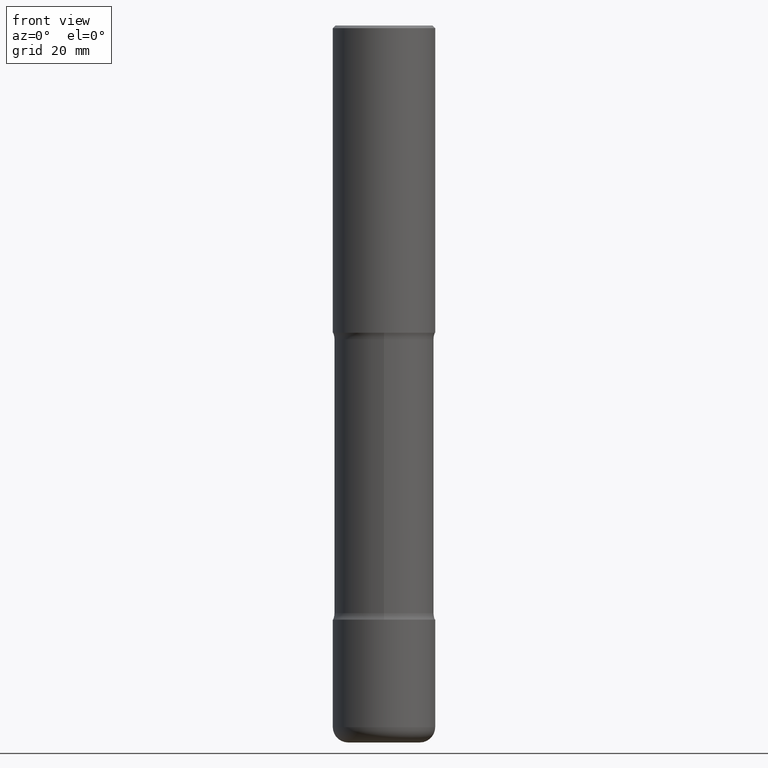
[diagram: clean part render]
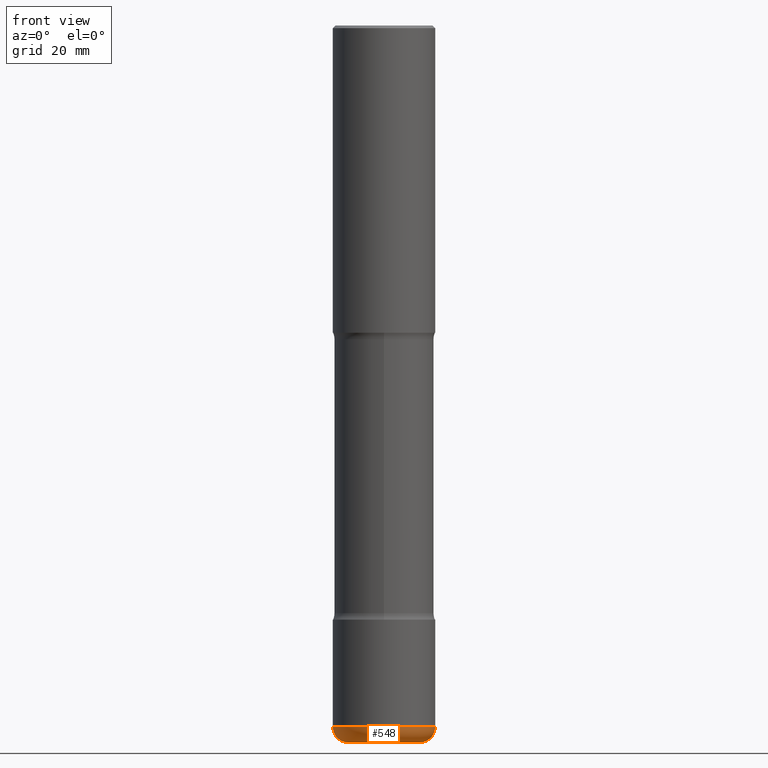
[diagram: same view with one face highlighted and labeled with its STEP entity id]
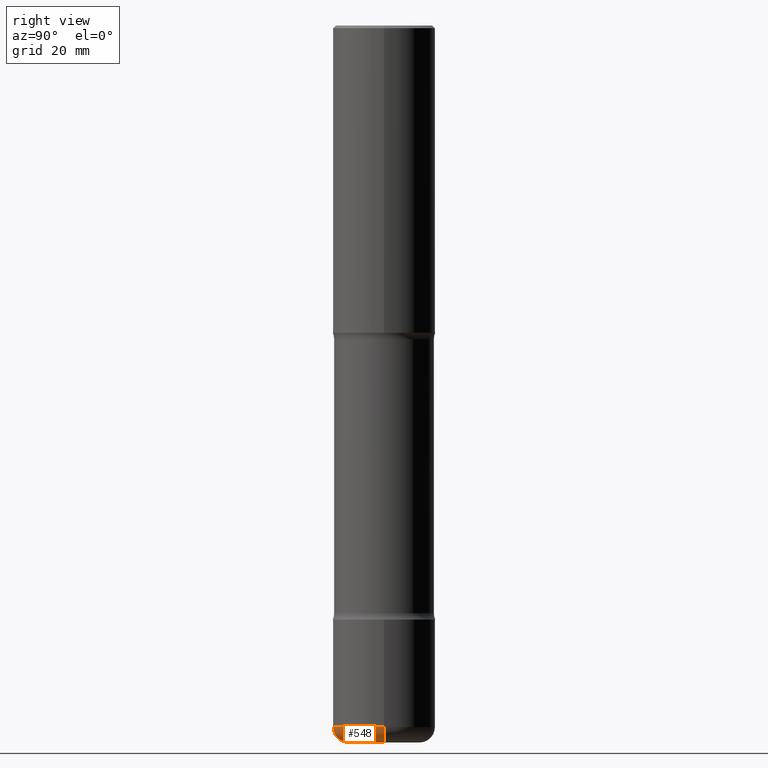
[diagram: same view with one face highlighted and labeled with its STEP entity id]
A machine part, front view. The second image highlights one B-rep face of the part: STEP entity #548.
A second angle (right view) of the same face is appended — the face is thin or edge-on in the first view.
In plain terms, the highlighted toroidal blend (fillet) surface has major radius 7.0002 mm and minor (blend) radius 2.9997 mm.
Its self-contained STEP definition (entity closure, byte-faithful):
#17 = CARTESIAN_POINT ( 'NONE',  ( -0.2756000000000005112, -1.666034360515578642E-14, -5.511800000000000033 ) ) ;
#45 = CARTESIAN_POINT ( 'NONE',  ( 1.319012509992077371E-28, -1.883200289731827938E-14, -5.393700000000000827 ) ) ;
#47 = EDGE_CURVE ( 'NONE', #338, #162, #282, .T. ) ;
#55 = FACE_OUTER_BOUND ( 'NONE', #434, .T. ) ;
#65 = AXIS2_PLACEMENT_3D ( 'NONE', #45, #217, #167 ) ;
#81 = ORIENTED_EDGE ( 'NONE', *, *, #281, .T. ) ;
#93 = DIRECTION ( 'NONE',  ( 7.105427357601001859E-15, 1.000000000000000000, -3.491481338843145583E-15 ) ) ;
#105 = CARTESIAN_POINT ( 'NONE',  ( 0.3937000000000003830, -2.158119530352336260E-14, -5.393700000000000827 ) ) ;
#121 = CIRCLE ( 'NONE', #65, 0.3937000000000006605 ) ;
#162 = VERTEX_POINT ( 'NONE', #444 ) ;
#167 = DIRECTION ( 'NONE',  ( 1.000000000000000000, -6.982962677686266711E-15, 0.000000000000000000 ) ) ;
#217 = DIRECTION ( 'NONE',  ( -2.445468806185136597E-29, 3.491481338843145583E-15, 1.000000000000000000 ) ) ;
#243 = CIRCLE ( 'NONE', #541, 0.1180999999999995526 ) ;
#248 = ORIENTED_EDGE ( 'NONE', *, *, #458, .F. ) ;
#253 = DIRECTION ( 'NONE',  ( 1.000000000000000000, -6.982962677686266711E-15, 4.883557194083112340E-29 ) ) ;
#262 = CARTESIAN_POINT ( 'NONE',  ( 0.2756000000000005112, -2.075650741128861749E-14, -5.393700000000000827 ) ) ;
#267 = TOROIDAL_SURFACE ( 'NONE', #534, 0.2756000000000005112, 0.1180999999999995248 ) ;
#281 = EDGE_CURVE ( 'NONE', #557, #291, #243, .T. ) ;
#282 = CIRCLE ( 'NONE', #433, 0.1180999999999995526 ) ;
#291 = VERTEX_POINT ( 'NONE', #105 ) ;
#312 = DIRECTION ( 'NONE',  ( -6.982962677686266711E-15, -1.000000000000000000, 3.491481338843145583E-15 ) ) ;
#321 = EDGE_CURVE ( 'NONE', #338, #557, #553, .T. ) ;
#338 = VERTEX_POINT ( 'NONE', #17 ) ;
#345 = CARTESIAN_POINT ( 'NONE',  ( 0.2756000000000005112, -2.116885135740598689E-14, -5.511800000000000033 ) ) ;
#367 = DIRECTION ( 'NONE',  ( 1.000000000000000000, -6.982962677686265922E-15, 0.000000000000000000 ) ) ;
#396 = CARTESIAN_POINT ( 'NONE',  ( 1.319012509992077371E-28, -1.883200289731827938E-14, -5.393700000000000827 ) ) ;
#406 = DIRECTION ( 'NONE',  ( -2.445468806185136597E-29, 3.491481338843145583E-15, 1.000000000000000000 ) ) ;
#426 = ORIENTED_EDGE ( 'NONE', *, *, #321, .T. ) ;
#433 = AXIS2_PLACEMENT_3D ( 'NONE', #496, #93, #455 ) ;
#434 = EDGE_LOOP ( 'NONE', ( #483, #426, #81, #248 ) ) ;
#444 = CARTESIAN_POINT ( 'NONE',  ( -0.3937000000000003830, -1.603459614663076223E-14, -5.393700000000000827 ) ) ;
#455 = DIRECTION ( 'NONE',  ( -1.000000000000000000, 7.105427357600997914E-15, 0.000000000000000000 ) ) ;
#456 = DIRECTION ( 'NONE',  ( 1.000000000000000000, -6.982962677686267499E-15, 0.000000000000000000 ) ) ;
#458 = EDGE_CURVE ( 'NONE', #162, #291, #121, .T. ) ;
#473 = AXIS2_PLACEMENT_3D ( 'NONE', #495, #406, #456 ) ;
#483 = ORIENTED_EDGE ( 'NONE', *, *, #47, .F. ) ;
#495 = CARTESIAN_POINT ( 'NONE',  ( 1.347893496593123646E-28, -1.924434684343564878E-14, -5.511800000000000033 ) ) ;
#496 = CARTESIAN_POINT ( 'NONE',  ( -0.2756000000000005112, -1.687374711756343806E-14, -5.393700000000000827 ) ) ;
#531 = DIRECTION ( 'NONE',  ( -2.445468806185136597E-29, 3.491481338843145583E-15, 1.000000000000000000 ) ) ;
#534 = AXIS2_PLACEMENT_3D ( 'NONE', #396, #531, #253 ) ;
#541 = AXIS2_PLACEMENT_3D ( 'NONE', #262, #312, #367 ) ;
#548 = ADVANCED_FACE ( 'NONE', ( #55 ), #267, .T. ) ;
#553 = CIRCLE ( 'NONE', #473, 0.2756000000000005112 ) ;
#557 = VERTEX_POINT ( 'NONE', #345 ) ;